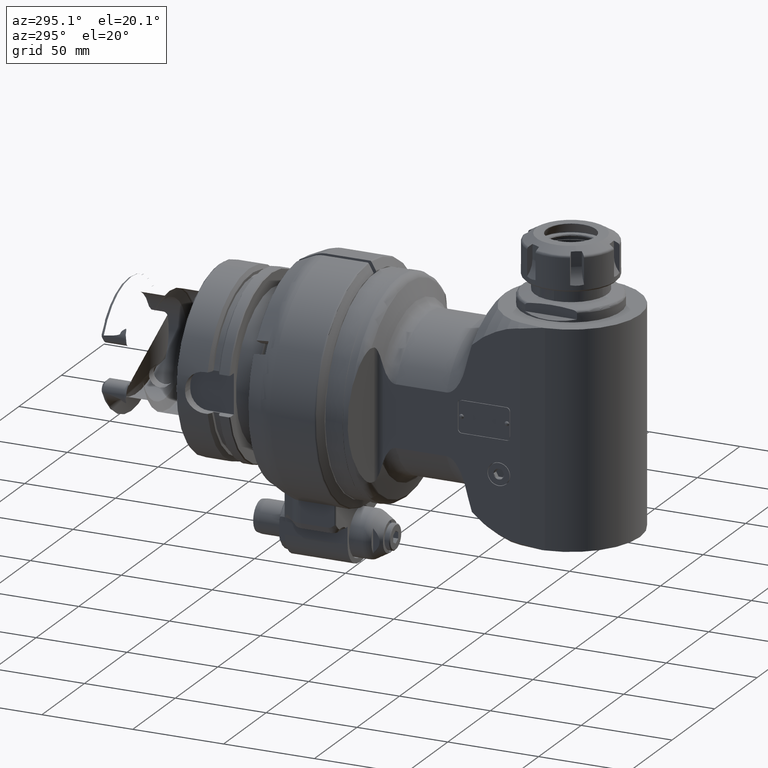
[diagram: clean part render]
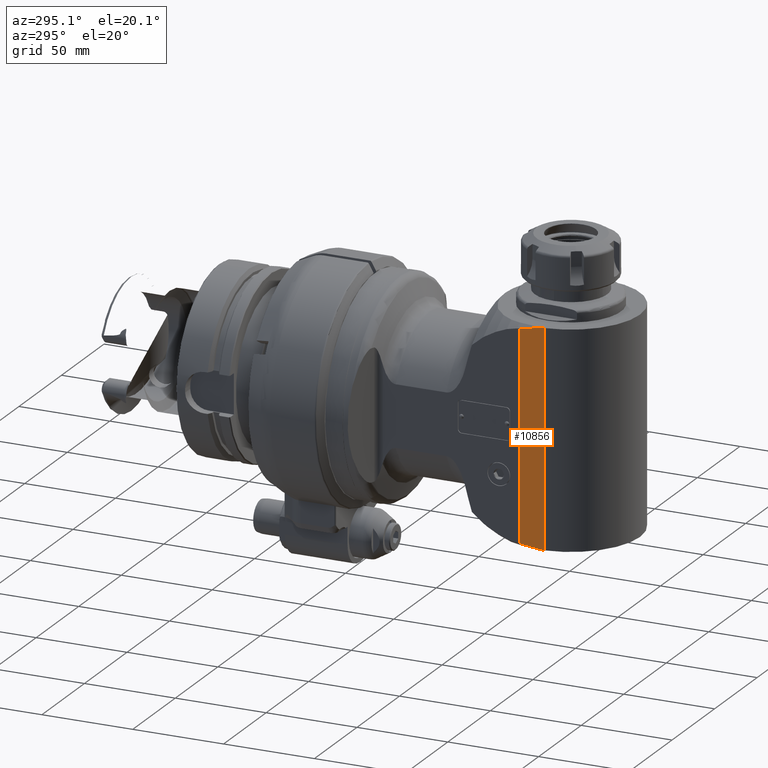
[diagram: same view with one face highlighted and labeled with its STEP entity id]
A machine part, auxiliary view. The second image highlights one B-rep face of the part: STEP entity #10856.
In plain terms, the highlighted planar face has unit normal (0.9962, 0.0872, 0).
Its self-contained STEP definition (entity closure, byte-faithful):
#363=(
BOUNDED_CURVE()
B_SPLINE_CURVE(2,(#23838,#23839,#23840),.UNSPECIFIED.,.F.,.F.)
B_SPLINE_CURVE_WITH_KNOTS((3,3),(-1.46039620381217,-0.269373796615799),
 .UNSPECIFIED.)
CURVE()
GEOMETRIC_REPRESENTATION_ITEM()
RATIONAL_B_SPLINE_CURVE((1.,1.,1.))
REPRESENTATION_ITEM('')
);
#364=(
BOUNDED_CURVE()
B_SPLINE_CURVE(2,(#23841,#23842,#23843),.UNSPECIFIED.,.F.,.F.)
B_SPLINE_CURVE_WITH_KNOTS((3,3),(-1.42688752434641,-0.235865117145058),
 .UNSPECIFIED.)
CURVE()
GEOMETRIC_REPRESENTATION_ITEM()
RATIONAL_B_SPLINE_CURVE((1.,1.,1.))
REPRESENTATION_ITEM('')
);
#1078=LINE('',#23712,#1752);
#1080=LINE('',#23776,#1754);
#1085=LINE('',#23835,#1759);
#1086=LINE('',#23837,#1760);
#1752=VECTOR('',#14887,10.);
#1754=VECTOR('',#14911,114.180488489);
#1759=VECTOR('',#14928,118.);
#1760=VECTOR('',#14929,10.);
#2350=PLANE('',#12069);
#2918=FACE_OUTER_BOUND('',#3621,.T.);
#3621=EDGE_LOOP('',(#9684,#9685,#9686,#9687,#9688,#9689));
#5213=VERTEX_POINT('',#23709);
#5214=VERTEX_POINT('',#23711);
#5224=VERTEX_POINT('',#23774);
#5225=VERTEX_POINT('',#23775);
#5243=VERTEX_POINT('',#23834);
#5244=VERTEX_POINT('',#23836);
#6724=EDGE_CURVE('',#5213,#5214,#1078,.T.);
#6740=EDGE_CURVE('',#5224,#5225,#1080,.T.);
#6760=EDGE_CURVE('',#5243,#5213,#1085,.T.);
#6761=EDGE_CURVE('',#5244,#5243,#1086,.T.);
#6762=EDGE_CURVE('',#5244,#5225,#363,.T.);
#6763=EDGE_CURVE('',#5224,#5214,#364,.T.);
#9684=ORIENTED_EDGE('',*,*,#6760,.F.);
#9685=ORIENTED_EDGE('',*,*,#6761,.F.);
#9686=ORIENTED_EDGE('',*,*,#6762,.T.);
#9687=ORIENTED_EDGE('',*,*,#6740,.F.);
#9688=ORIENTED_EDGE('',*,*,#6763,.T.);
#9689=ORIENTED_EDGE('',*,*,#6724,.F.);
#10856=ADVANCED_FACE('',(#2918),#2350,.F.);
#12069=AXIS2_PLACEMENT_3D('',#23833,#14926,#14927);
#14887=DIRECTION('',(-0.996194698091745,0.,-0.0871557427476639));
#14911=DIRECTION('',(-2.379667014481E-13,-1.,1.20962257917E-12));
#14926=DIRECTION('center_axis',(-0.087155742747664,0.,0.996194698091745));
#14927=DIRECTION('ref_axis',(0.996194698091745,0.,0.0871557427476639));
#14928=DIRECTION('',(-1.336783791006E-14,1.,0.));
#14929=DIRECTION('',(0.996194698091745,0.,0.0871557427476639));
#23709=CARTESIAN_POINT('',(113.3119182244,59.,-37.85539852749));
#23711=CARTESIAN_POINT('',(111.945914181317,59.0000036756603,-37.9749140907799));
#23712=CARTESIAN_POINT('',(33.7774282883451,59.,-44.813764756212));
#23774=CARTESIAN_POINT('',(100.229063317582,57.0902369205814,-38.9999995293897));
#23775=CARTESIAN_POINT('',(100.229063317563,-57.0902369205901,-38.999999529344));
#23776=CARTESIAN_POINT('',(100.2290632468,57.09024424417,-38.99999857477));
#23833=CARTESIAN_POINT('Origin',(113.3119182244,-59.,-37.85539852749));
#23834=CARTESIAN_POINT('',(113.3119182244,-59.,-37.85539852749));
#23835=CARTESIAN_POINT('',(113.3119182244,-59.,-37.85539852749));
#23836=CARTESIAN_POINT('',(111.94591418088,-59.0000036756405,-37.9749140907875));
#23837=CARTESIAN_POINT('',(90.1470505024452,-59.,-39.8820618452388));
#23838=CARTESIAN_POINT('Ctrl Pts',(111.945845091703,-59.,-37.9749144401484));
#23839=CARTESIAN_POINT('Ctrl Pts',(105.991079725707,-58.0451184571351,-38.4958889036298));
#23840=CARTESIAN_POINT('Ctrl Pts',(100.229063361063,-57.0902369142691,-39.000000014587));
#23841=CARTESIAN_POINT('Ctrl Pts',(100.229063361079,57.090236914261,-39.0000000145857));
#23842=CARTESIAN_POINT('Ctrl Pts',(105.991079725757,58.0451184571327,-38.4958889036255));
#23843=CARTESIAN_POINT('Ctrl Pts',(111.945845091768,59.,-37.9749144401427));